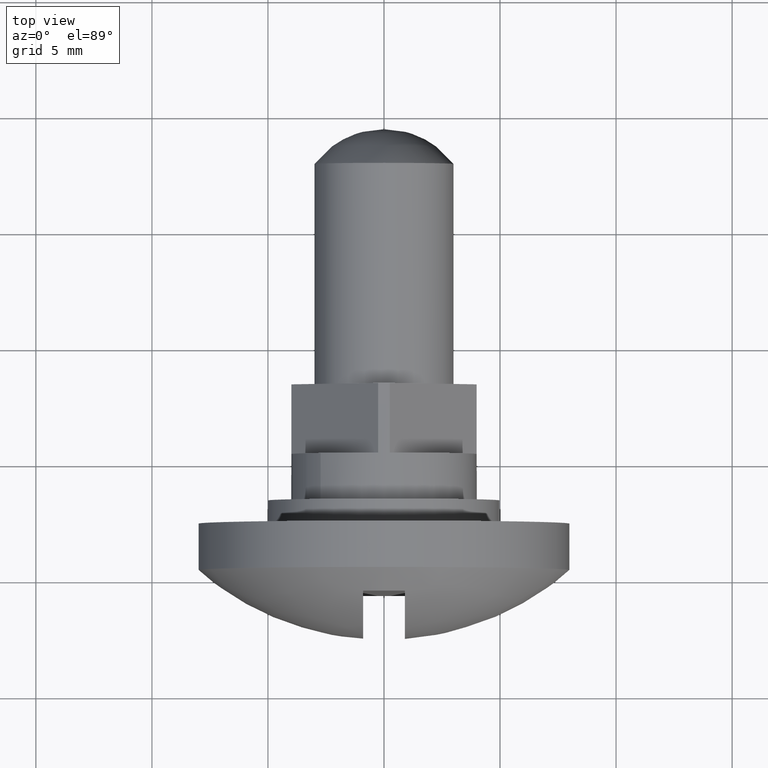
[diagram: clean part render]
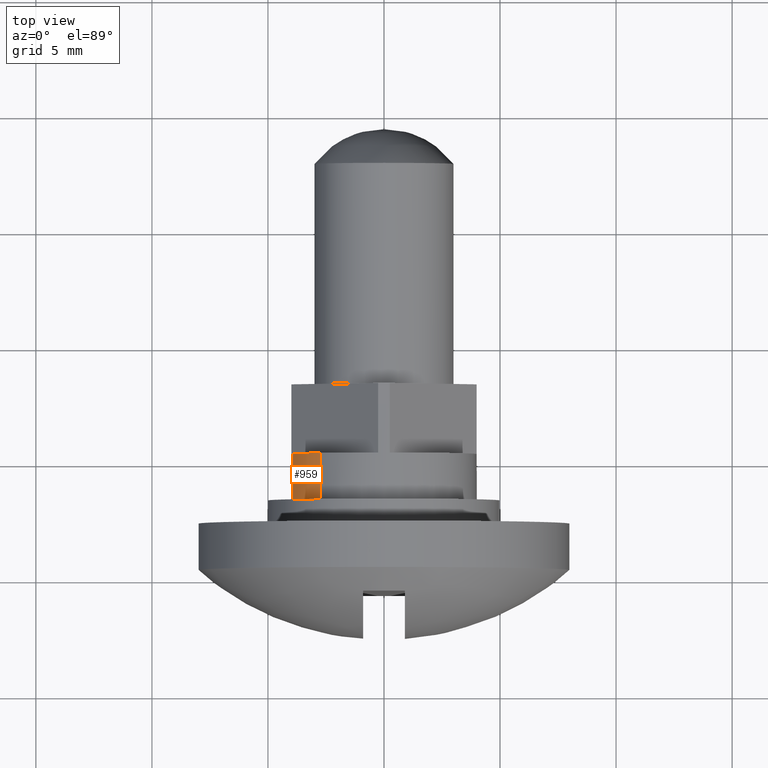
[diagram: same view with one face highlighted and labeled with its STEP entity id]
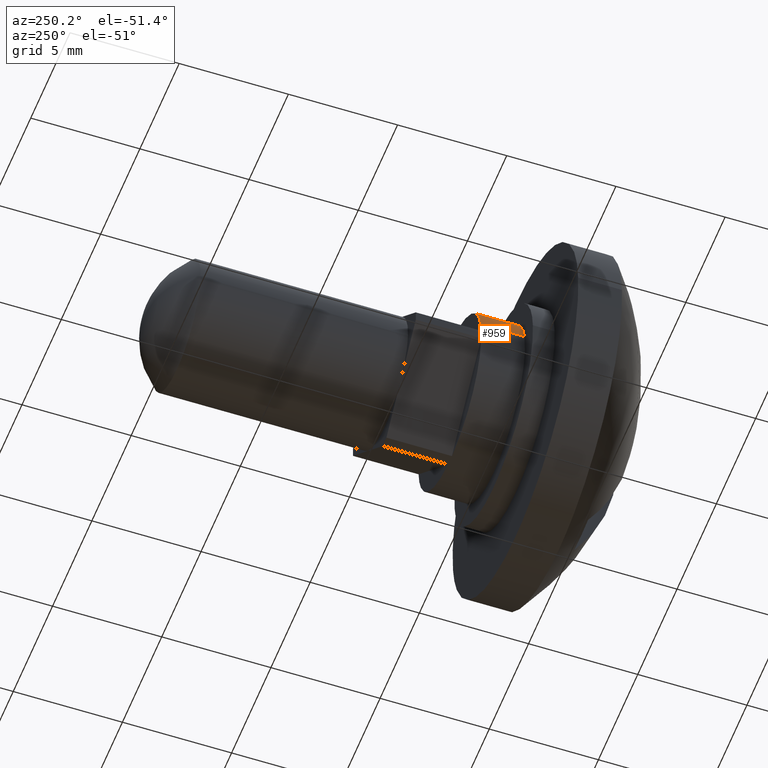
[diagram: same view with one face highlighted and labeled with its STEP entity id]
A machine part, top view. The second image highlights one B-rep face of the part: STEP entity #959.
A second angle (auxiliary view) of the same face is appended — the face is thin or edge-on in the first view.
In plain terms, the highlighted face is a freeform B-spline surface patch.
Its self-contained STEP definition (entity closure, byte-faithful):
#656=CARTESIAN_POINT('',(-3.921343658263245,-1.599990999999906,0.789343976855862));
#657=VERTEX_POINT('',#656);
#675=CARTESIAN_POINT('',(-3.921340227608133,0.400000000000067,0.789343287762290));
#676=VERTEX_POINT('',#675);
#677=CARTESIAN_POINT('',(-3.921340227608133,0.400000000000067,0.789343287762290));
#678=CARTESIAN_POINT('',(-3.921343658263245,-1.599990999999906,0.789343976855862));
#679=QUASI_UNIFORM_CURVE('',1,(#677,#678),.UNSPECIFIED.,.F.,.U.);
#680=EDGE_CURVE('',#676,#657,#679,.T.);
#860=CARTESIAN_POINT('',(-2.732595879841889,0.400000000000067,2.921114364688756));
#861=VERTEX_POINT('',#860);
#875=CARTESIAN_POINT('',(-2.732596711454129,-1.599990999985122,2.921115405551432));
#876=VERTEX_POINT('',#875);
#877=CARTESIAN_POINT('',(-2.732595879841889,0.400000000000067,2.921114364688756));
#878=CARTESIAN_POINT('',(-2.732596711454129,-1.599990999985122,2.921115405551432));
#879=QUASI_UNIFORM_CURVE('',1,(#877,#878),.UNSPECIFIED.,.F.,.U.);
#880=EDGE_CURVE('',#861,#876,#879,.T.);
#915=CARTESIAN_POINT('',(-2.732597007002008,0.499899399338200,2.921115129077191));
#916=CARTESIAN_POINT('',(-3.668455812748896,0.499899399338200,2.045653239162464));
#917=CARTESIAN_POINT('',(-3.921343658264847,0.499899399338200,0.789343976847903));
#918=CARTESIAN_POINT('',(-2.732597007002008,-1.699890343257364,2.921115129077191));
#919=CARTESIAN_POINT('',(-3.668455812748896,-1.699890343257364,2.045653239162464));
#920=CARTESIAN_POINT('',(-3.921343658264847,-1.699890343257364,0.789343976847903));
#928=(BOUNDED_SURFACE()B_SPLINE_SURFACE(2,1,((#915,#918),(#916,#919),(#917,#920)),.UNSPECIFIED.,.F.,.F.,.U.)B_SPLINE_SURFACE_WITH_KNOTS((3,3),(2,2),(0.0,2.632897447773293),(0.0,2.199789742595564),.UNSPECIFIED.)GEOMETRIC_REPRESENTATION_ITEM()RATIONAL_B_SPLINE_SURFACE(((1.0,1.0),(0.882842712474619,0.882842712474619),(0.859411254969543,0.859411254969543)))REPRESENTATION_ITEM('')SURFACE());
#929=CARTESIAN_POINT('',(-2.732596711454129,-1.599990999985121,2.921115405551432));
#930=CARTESIAN_POINT('',(-3.668455724682123,-1.599990999999906,2.045653676638728));
#931=CARTESIAN_POINT('',(-3.921343658263246,-1.599990999999906,0.789343976855862));
#939=(BOUNDED_CURVE()B_SPLINE_CURVE(2,(#929,#930,#931),.UNSPECIFIED.,.F.,.U.)B_SPLINE_CURVE_WITH_KNOTS((3,3),(0.619970126218107,0.716165728968471),.UNSPECIFIED.)CURVE()GEOMETRIC_REPRESENTATION_ITEM()RATIONAL_B_SPLINE_CURVE((0.853790513477823,0.849255572882052,0.931450710010643))REPRESENTATION_ITEM(''));
#940=EDGE_CURVE('',#876,#657,#939,.T.);
#941=ORIENTED_EDGE('',*,*,#940,.F.);
#942=ORIENTED_EDGE('',*,*,#880,.F.);
#943=CARTESIAN_POINT('',(-2.732595879841889,0.400000000000067,2.921114364688756));
#944=CARTESIAN_POINT('',(-3.668453104502334,0.400000000000067,2.045652172846654));
#945=CARTESIAN_POINT('',(-3.921340227608133,0.400000000000067,0.789343287762290));
#953=(BOUNDED_CURVE()B_SPLINE_CURVE(2,(#943,#944,#945),.UNSPECIFIED.,.F.,.U.)B_SPLINE_CURVE_WITH_KNOTS((3,3),(0.477951520941008,0.899634941109882),.UNSPECIFIED.)CURVE()GEOMETRIC_REPRESENTATION_ITEM()RATIONAL_B_SPLINE_CURVE((0.875242220055868,0.870593449440543,0.954853736334627))REPRESENTATION_ITEM(''));
#954=EDGE_CURVE('',#861,#676,#953,.T.);
#955=ORIENTED_EDGE('',*,*,#954,.T.);
#956=ORIENTED_EDGE('',*,*,#680,.T.);
#957=EDGE_LOOP('',(#941,#942,#955,#956));
#958=FACE_OUTER_BOUND('',#957,.T.);
#959=ADVANCED_FACE('',(#958),#928,.T.);